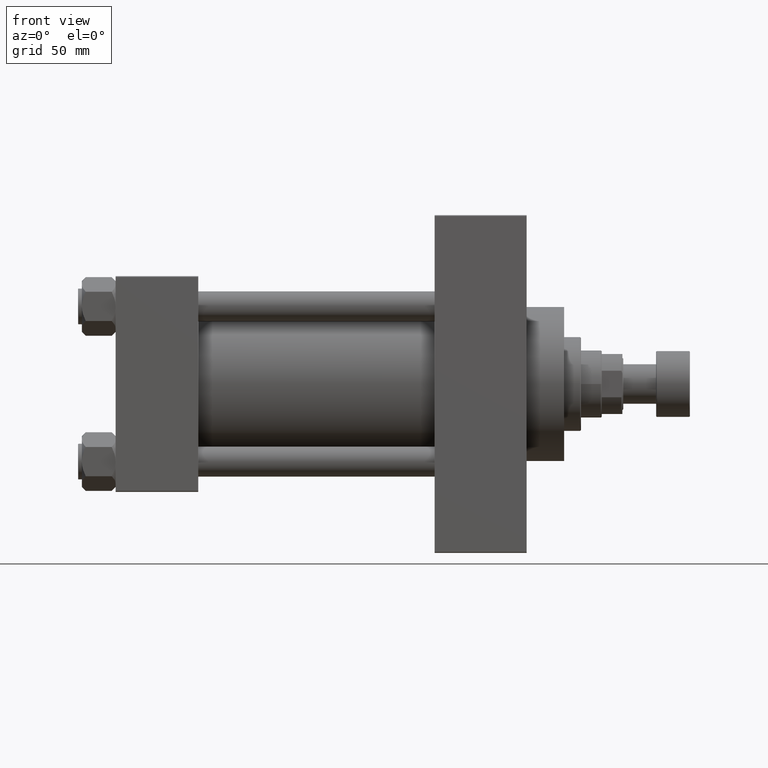
[diagram: clean part render]
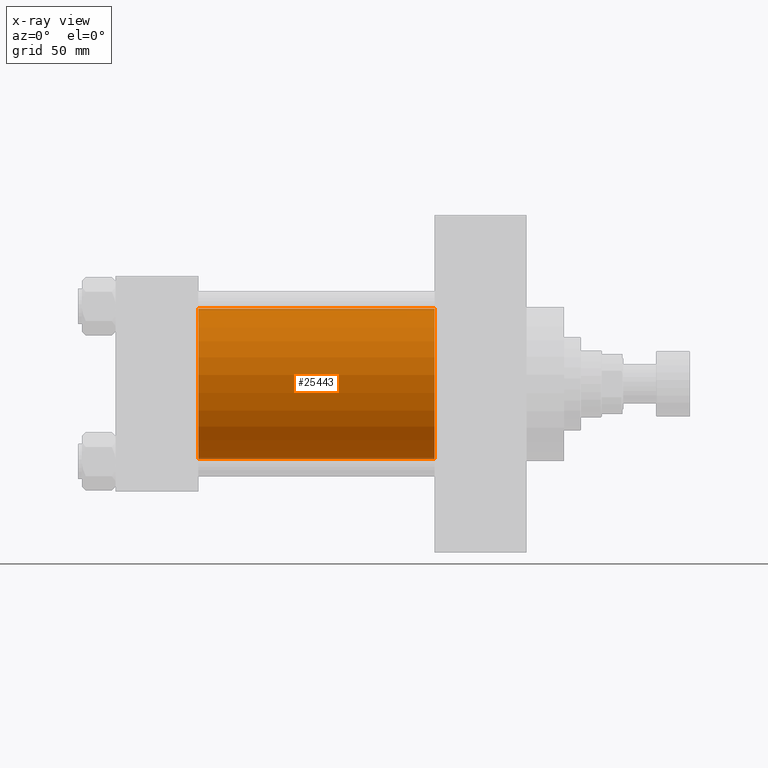
[diagram: x-ray — body ghosted, one internal face saturated and labeled with its STEP entity id]
A machine part, front view, then the same camera in x-ray: the body is ghosted and one INTERNAL B-rep face — a face not visible from any outside direction — is saturated and labeled: STEP entity #25443.
In plain terms, the highlighted cylindrical surface (partial cylindrical patch) has radius 40 mm, axis along (-1, -0, -0).
Its self-contained STEP definition (entity closure, byte-faithful):
#192 = DIRECTION ( 'NONE',  ( -1.000000000000000000, -0.000000000000000000, -0.000000000000000000 ) ) ;
#746 = AXIS2_PLACEMENT_3D ( 'NONE', #27257, #20192, #16984 ) ;
#2056 = CARTESIAN_POINT ( 'NONE',  ( 169.9999999999999716, 2.296501982624201990E-15, -40.00000000000000000 ) ) ;
#4079 = CARTESIAN_POINT ( 'NONE',  ( 169.9999999999999716, -2.602085213965210642E-15, 40.00000000000000000 ) ) ;
#4669 = CARTESIAN_POINT ( 'NONE',  ( 169.9999999999999716, 2.296501982624201990E-15, -40.00000000000000000 ) ) ;
#6767 = DIRECTION ( 'NONE',  ( -1.000000000000000000, -0.000000000000000000, -0.000000000000000000 ) ) ;
#9057 = EDGE_CURVE ( 'NONE', #34164, #22430, #35484, .T. ) ;
#9273 = EDGE_LOOP ( 'NONE', ( #30107, #11489, #36247, #10800 ) ) ;
#10800 = ORIENTED_EDGE ( 'NONE', *, *, #41416, .F. ) ;
#11489 = ORIENTED_EDGE ( 'NONE', *, *, #36587, .T. ) ;
#16827 = VECTOR ( 'NONE', #19533, 1000.000000000000000 ) ;
#16984 = DIRECTION ( 'NONE',  ( 0.000000000000000000, 0.000000000000000000, -1.000000000000000000 ) ) ;
#17973 = CYLINDRICAL_SURFACE ( 'NONE', #18040, 40.00000000000000000 ) ;
#18040 = AXIS2_PLACEMENT_3D ( 'NONE', #20912, #6767, #35739 ) ;
#18225 = DIRECTION ( 'NONE',  ( 1.000000000000000000, 0.000000000000000000, 0.000000000000000000 ) ) ;
#19533 = DIRECTION ( 'NONE',  ( -1.000000000000000000, -0.000000000000000000, -0.000000000000000000 ) ) ;
#20192 = DIRECTION ( 'NONE',  ( 1.000000000000000000, 0.000000000000000000, 0.000000000000000000 ) ) ;
#20681 = FACE_OUTER_BOUND ( 'NONE', #9273, .T. ) ;
#20912 = CARTESIAN_POINT ( 'NONE',  ( 169.9999999999999716, -2.602085213965210642E-15, 0.000000000000000000 ) ) ;
#20976 = CIRCLE ( 'NONE', #746, 40.00000000000000000 ) ;
#21862 = LINE ( 'NONE', #4079, #25538 ) ;
#22430 = VERTEX_POINT ( 'NONE', #2056 ) ;
#23182 = LINE ( 'NONE', #4669, #16827 ) ;
#25443 = ADVANCED_FACE ( 'NONE', ( #20681 ), #17973, .F. ) ;
#25538 = VECTOR ( 'NONE', #192, 1000.000000000000000 ) ;
#25965 = CARTESIAN_POINT ( 'NONE',  ( 44.00000000000000000, -2.602085213965210642E-15, 40.00000000000000000 ) ) ;
#27257 = CARTESIAN_POINT ( 'NONE',  ( 44.00000000000000000, -2.602085213965210642E-15, 0.000000000000000000 ) ) ;
#29617 = VERTEX_POINT ( 'NONE', #25965 ) ;
#30107 = ORIENTED_EDGE ( 'NONE', *, *, #9057, .T. ) ;
#31519 = VERTEX_POINT ( 'NONE', #42904 ) ;
#34164 = VERTEX_POINT ( 'NONE', #35576 ) ;
#35484 = CIRCLE ( 'NONE', #42467, 40.00000000000000000 ) ;
#35576 = CARTESIAN_POINT ( 'NONE',  ( 169.9999999999999716, -2.602085213965210642E-15, 40.00000000000000000 ) ) ;
#35739 = DIRECTION ( 'NONE',  ( 0.000000000000000000, 0.000000000000000000, 1.000000000000000000 ) ) ;
#36247 = ORIENTED_EDGE ( 'NONE', *, *, #47669, .F. ) ;
#36587 = EDGE_CURVE ( 'NONE', #22430, #31519, #23182, .T. ) ;
#36721 = CARTESIAN_POINT ( 'NONE',  ( 169.9999999999999716, -2.602085213965210642E-15, 0.000000000000000000 ) ) ;
#41416 = EDGE_CURVE ( 'NONE', #34164, #29617, #21862, .T. ) ;
#42467 = AXIS2_PLACEMENT_3D ( 'NONE', #36721, #18225, #47917 ) ;
#42904 = CARTESIAN_POINT ( 'NONE',  ( 44.00000000000000000, 2.296501982624201990E-15, -40.00000000000000000 ) ) ;
#47669 = EDGE_CURVE ( 'NONE', #29617, #31519, #20976, .T. ) ;
#47917 = DIRECTION ( 'NONE',  ( 0.000000000000000000, 0.000000000000000000, -1.000000000000000000 ) ) ;